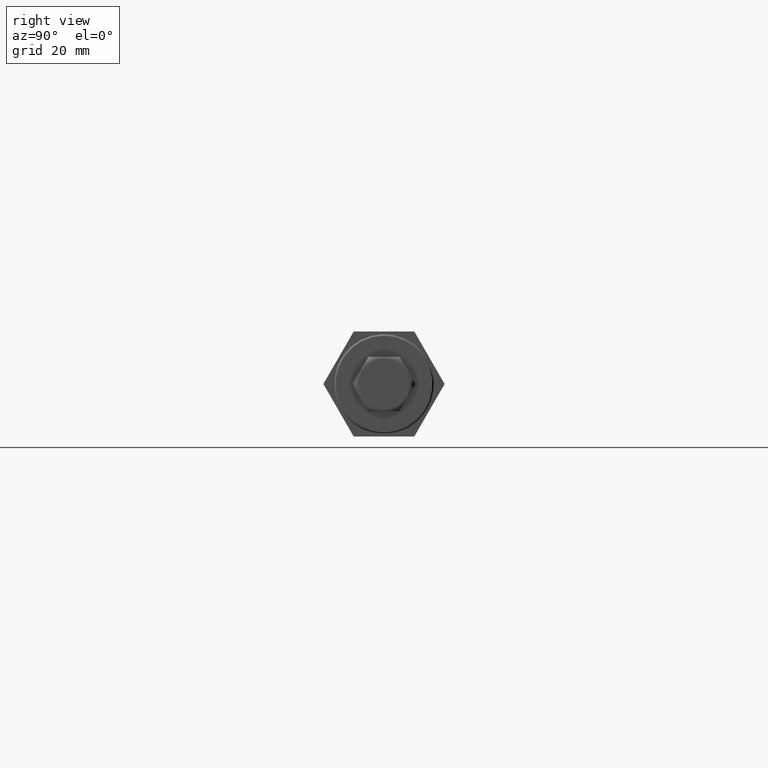
[diagram: clean part render]
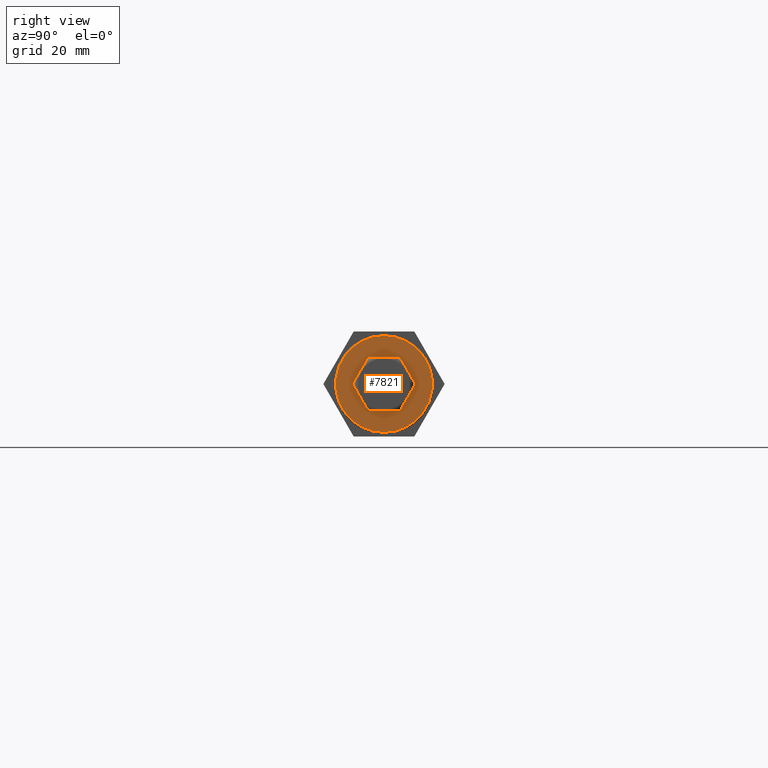
[diagram: same view with one face highlighted and labeled with its STEP entity id]
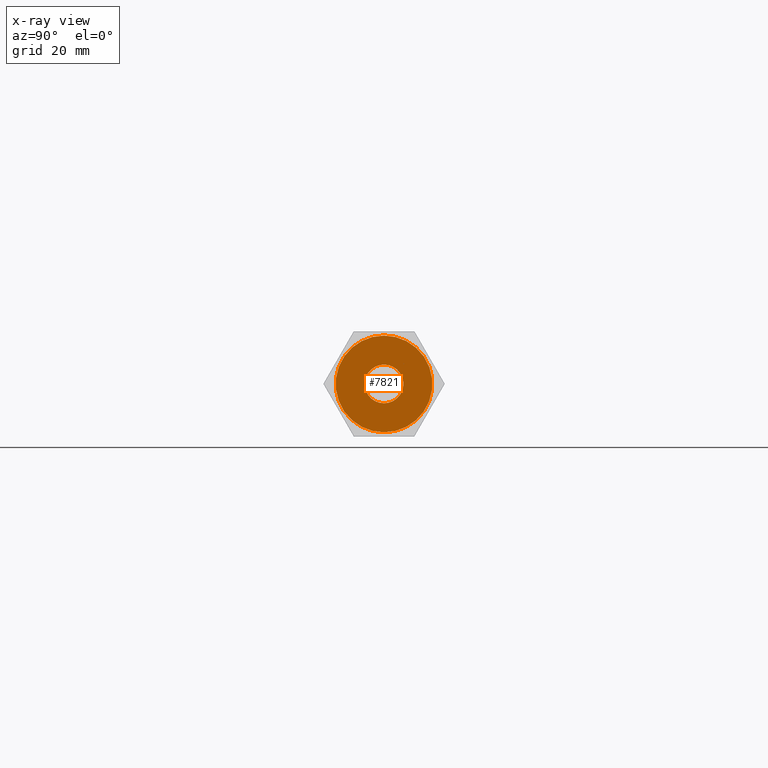
[diagram: x-ray of the same camera — body ghosted, the highlighted face saturated]
A machine part, right view. The second image highlights one B-rep face of the part: STEP entity #7821.
The next image is the same camera in x-ray: the body ghosted, the highlighted face saturated — about 0% of this face is hidden behind the body in this view.
In plain terms, the highlighted planar face has unit normal (-1, 0, -0).
Its self-contained STEP definition (entity closure, byte-faithful):
#177 = ORIENTED_EDGE ( 'NONE', *, *, #3302, .T. ) ;
#673 = AXIS2_PLACEMENT_3D ( 'NONE', #10924, #16888, #18283 ) ;
#781 = EDGE_CURVE ( 'NONE', #17380, #17380, #13909, .T. ) ;
#807 = PLANE ( 'NONE',  #673 ) ;
#815 = CARTESIAN_POINT ( 'NONE',  ( 0.000000000000000000, 0.000000000000000000, 0.000000000000000000 ) ) ;
#920 = DIRECTION ( 'NONE',  ( 1.000000000000000000, 0.000000000000000000, 0.000000000000000000 ) ) ;
#2431 = FACE_OUTER_BOUND ( 'NONE', #2620, .T. ) ;
#2620 = EDGE_LOOP ( 'NONE', ( #12150 ) ) ;
#2686 = AXIS2_PLACEMENT_3D ( 'NONE', #10974, #5360, #920 ) ;
#3302 = EDGE_CURVE ( 'NONE', #9007, #9007, #7780, .T. ) ;
#4926 = FACE_BOUND ( 'NONE', #5194, .T. ) ;
#5194 = EDGE_LOOP ( 'NONE', ( #177 ) ) ;
#5282 = CARTESIAN_POINT ( 'NONE',  ( 3.500000000000000000, 0.000000000000000000, 0.000000000000000000 ) ) ;
#5360 = DIRECTION ( 'NONE',  ( -0.000000000000000000, -0.000000000000000000, -1.000000000000000000 ) ) ;
#7780 = CIRCLE ( 'NONE', #16117, 3.500000000000000000 ) ;
#7821 = ADVANCED_FACE ( 'NONE', ( #2431, #4926 ), #807, .F. ) ;
#9007 = VERTEX_POINT ( 'NONE', #5282 ) ;
#10924 = CARTESIAN_POINT ( 'NONE',  ( 0.000000000000000000, 0.000000000000000000, 0.000000000000000000 ) ) ;
#10974 = CARTESIAN_POINT ( 'NONE',  ( 0.000000000000000000, 0.000000000000000000, 0.000000000000000000 ) ) ;
#12150 = ORIENTED_EDGE ( 'NONE', *, *, #781, .T. ) ;
#13909 = CIRCLE ( 'NONE', #2686, 8.750000000000001776 ) ;
#15202 = DIRECTION ( 'NONE',  ( 0.000000000000000000, 0.000000000000000000, 1.000000000000000000 ) ) ;
#16117 = AXIS2_PLACEMENT_3D ( 'NONE', #815, #15202, #16454 ) ;
#16190 = CARTESIAN_POINT ( 'NONE',  ( 8.750000000000001776, 0.000000000000000000, 0.000000000000000000 ) ) ;
#16454 = DIRECTION ( 'NONE',  ( 1.000000000000000000, 0.000000000000000000, 0.000000000000000000 ) ) ;
#16888 = DIRECTION ( 'NONE',  ( 0.000000000000000000, 0.000000000000000000, 1.000000000000000000 ) ) ;
#17380 = VERTEX_POINT ( 'NONE', #16190 ) ;
#18283 = DIRECTION ( 'NONE',  ( 1.000000000000000000, 0.000000000000000000, -0.000000000000000000 ) ) ;